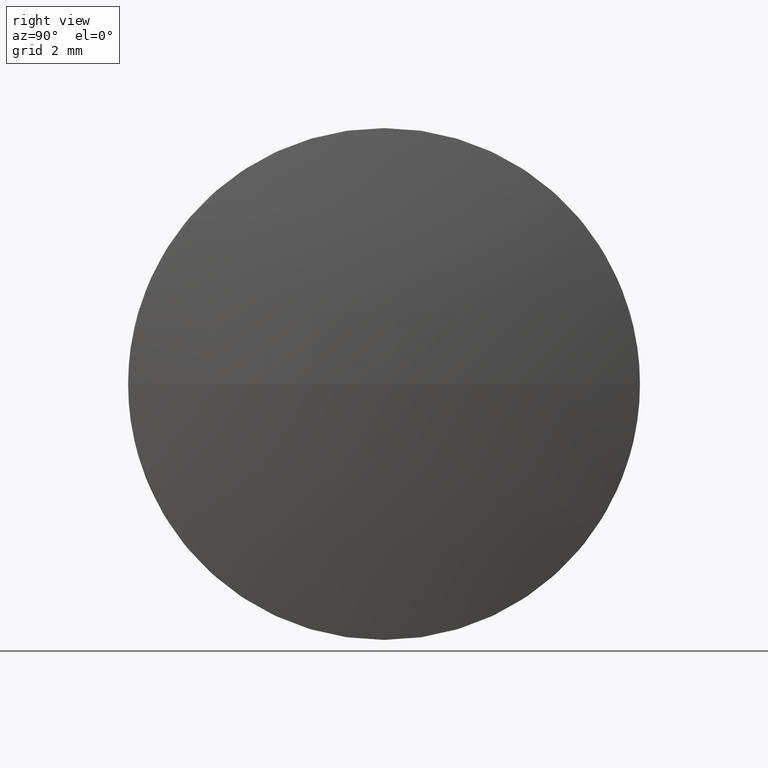
[diagram: clean part render]
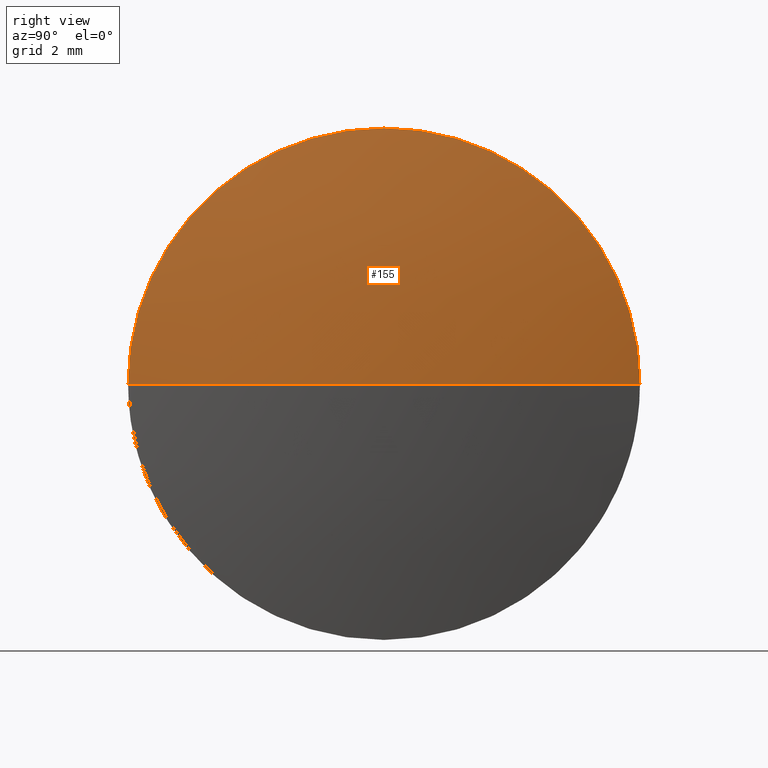
[diagram: same view with one face highlighted and labeled with its STEP entity id]
A machine part, right view. The second image highlights one B-rep face of the part: STEP entity #155.
In plain terms, the highlighted spherical surface has radius 33.9021 mm.
Its self-contained STEP definition (entity closure, byte-faithful):
#4 = DIRECTION ( 'NONE',  ( 0.0000000000000000000, 0.0000000000000000000, 1.000000000000000000 ) ) ;
#9 = AXIS2_PLACEMENT_3D ( 'NONE', #16, #159, #20 ) ;
#10 = ORIENTED_EDGE ( 'NONE', *, *, #110, .T. ) ;
#11 = AXIS2_PLACEMENT_3D ( 'NONE', #63, #139, #4 ) ;
#12 = VERTEX_POINT ( 'NONE', #178 ) ;
#16 = CARTESIAN_POINT ( 'NONE',  ( 336.9297911166494800, 178.5090512951935900, 0.0000000000000000000 ) ) ;
#20 = DIRECTION ( 'NONE',  ( 0.0000000000000000000, 1.000000000000000000, 0.0000000000000000000 ) ) ;
#26 = AXIS2_PLACEMENT_3D ( 'NONE', #46, #47, #166 ) ;
#35 = VERTEX_POINT ( 'NONE', #181 ) ;
#44 = CARTESIAN_POINT ( 'NONE',  ( 336.9297911166494800, 178.5090512951935900, 0.0000000000000000000 ) ) ;
#46 = CARTESIAN_POINT ( 'NONE',  ( 336.9297911166494800, 178.5090512951935900, 0.0000000000000000000 ) ) ;
#47 = DIRECTION ( 'NONE',  ( 0.0000000000000000000, 1.224646799147353200E-016, -1.000000000000000000 ) ) ;
#52 = ORIENTED_EDGE ( 'NONE', *, *, #62, .F. ) ;
#54 = CIRCLE ( 'NONE', #26, 33.90208333333328000 ) ;
#55 = AXIS2_PLACEMENT_3D ( 'NONE', #140, #92, #143 ) ;
#58 = CARTESIAN_POINT ( 'NONE',  ( 370.2318744499828000, 184.8590512951935500, 0.0000000000000000000 ) ) ;
#62 = EDGE_CURVE ( 'NONE', #112, #156, #148, .T. ) ;
#63 = CARTESIAN_POINT ( 'NONE',  ( 370.2318744499828000, 178.5090512951935900, 0.0000000000000000000 ) ) ;
#64 = DIRECTION ( 'NONE',  ( -0.0000000000000000000, 0.0000000000000000000, 1.000000000000000000 ) ) ;
#82 = EDGE_LOOP ( 'NONE', ( #99, #10, #52, #98 ) ) ;
#83 = EDGE_CURVE ( 'NONE', #12, #35, #54, .T. ) ;
#92 = DIRECTION ( 'NONE',  ( -1.000000000000000000, -0.0000000000000000000, -0.0000000000000000000 ) ) ;
#95 = EDGE_CURVE ( 'NONE', #35, #112, #136, .T. ) ;
#98 = ORIENTED_EDGE ( 'NONE', *, *, #95, .F. ) ;
#99 = ORIENTED_EDGE ( 'NONE', *, *, #83, .F. ) ;
#110 = EDGE_CURVE ( 'NONE', #12, #156, #169, .T. ) ;
#112 = VERTEX_POINT ( 'NONE', #120 ) ;
#120 = CARTESIAN_POINT ( 'NONE',  ( 370.2318744499828000, 178.5090512951935900, 6.349999999999994300 ) ) ;
#130 = AXIS2_PLACEMENT_3D ( 'NONE', #44, #64, #164 ) ;
#136 = CIRCLE ( 'NONE', #55, 6.349999999999994300 ) ;
#139 = DIRECTION ( 'NONE',  ( -1.000000000000000000, -0.0000000000000000000, -0.0000000000000000000 ) ) ;
#140 = CARTESIAN_POINT ( 'NONE',  ( 370.2318744499828000, 178.5090512951935900, 0.0000000000000000000 ) ) ;
#143 = DIRECTION ( 'NONE',  ( 0.0000000000000000000, 0.0000000000000000000, 1.000000000000000000 ) ) ;
#148 = CIRCLE ( 'NONE', #11, 6.349999999999994300 ) ;
#155 = ADVANCED_FACE ( 'NONE', ( #168 ), #165, .T. ) ;
#156 = VERTEX_POINT ( 'NONE', #58 ) ;
#159 = DIRECTION ( 'NONE',  ( -0.0000000000000000000, 0.0000000000000000000, -1.000000000000000000 ) ) ;
#164 = DIRECTION ( 'NONE',  ( 1.000000000000000000, 0.0000000000000000000, 0.0000000000000000000 ) ) ;
#165 = SPHERICAL_SURFACE ( 'NONE', #9, 33.90208333333328000 ) ;
#166 = DIRECTION ( 'NONE',  ( 0.0000000000000000000, 1.000000000000000000, 1.224646799147353200E-016 ) ) ;
#168 = FACE_OUTER_BOUND ( 'NONE', #82, .T. ) ;
#169 = CIRCLE ( 'NONE', #130, 33.90208333333328000 ) ;
#178 = CARTESIAN_POINT ( 'NONE',  ( 370.8318744499827600, 178.5090512951935900, 0.0000000000000000000 ) ) ;
#181 = CARTESIAN_POINT ( 'NONE',  ( 370.2318744499828000, 172.1590512951936200, -7.776507174585653700E-016 ) ) ;